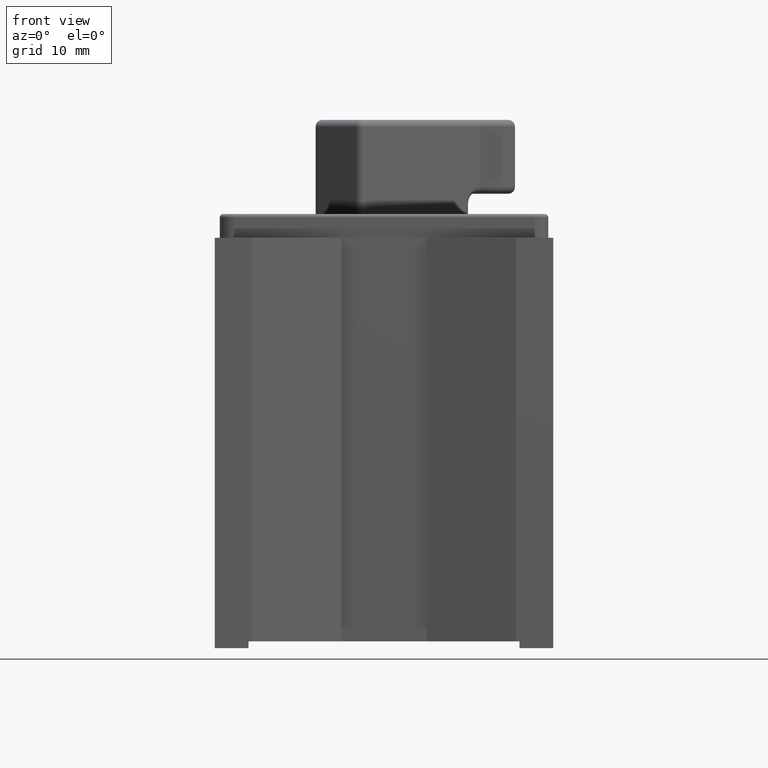
[diagram: clean part render]
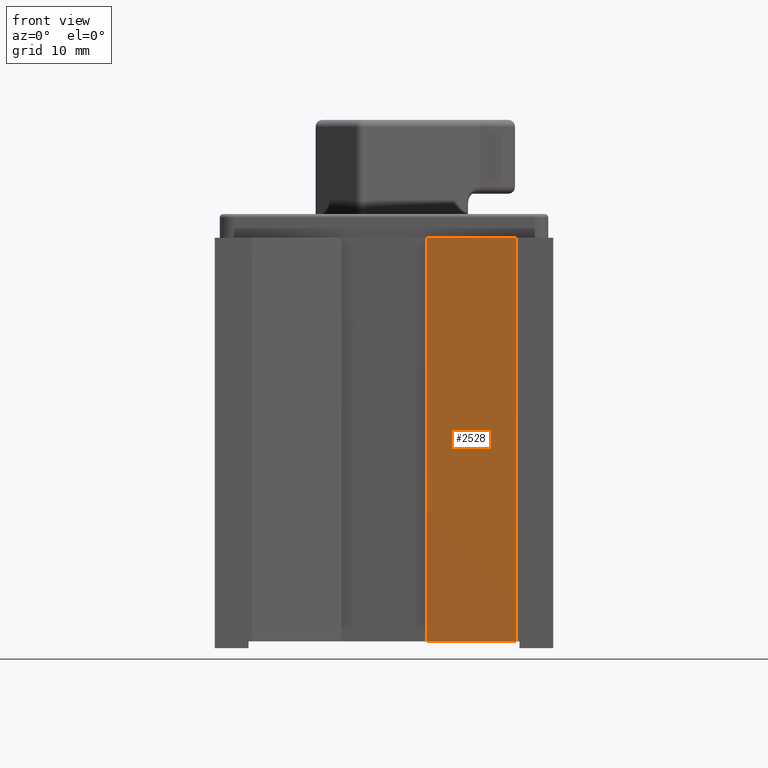
[diagram: same view with one face highlighted and labeled with its STEP entity id]
A machine part, front view. The second image highlights one B-rep face of the part: STEP entity #2528.
In plain terms, the highlighted planar face has unit normal (-0.29, -0.957, 0).
Its self-contained STEP definition (entity closure, byte-faithful):
#173 = CARTESIAN_POINT ( 'NONE',  ( 12.57474630655249800, -27.71065196765026400, 108.2999999999761900 ) ) ;
#211 = CARTESIAN_POINT ( 'NONE',  ( 12.57474630655249500, -27.71065196765026400, 48.69999999997617800 ) ) ;
#220 = VERTEX_POINT ( 'NONE', #211 ) ;
#313 = AXIS2_PLACEMENT_3D ( 'NONE', #3419, #5206, #1023 ) ;
#319 = DIRECTION ( 'NONE',  ( 0.0000000000000000000, 0.0000000000000000000, 1.000000000000000000 ) ) ;
#549 = EDGE_CURVE ( 'NONE', #2927, #1477, #4840, .T. ) ;
#653 = VECTOR ( 'NONE', #3394, 1000.000000000000000 ) ;
#731 = LINE ( 'NONE', #1017, #653 ) ;
#1017 = CARTESIAN_POINT ( 'NONE',  ( 12.57474630655249800, -27.71065196765026400, 47.69999999997618500 ) ) ;
#1023 = DIRECTION ( 'NONE',  ( 0.9570244044334739200, -0.2900073952828694500, 0.0000000000000000000 ) ) ;
#1056 = ORIENTED_EDGE ( 'NONE', *, *, #1303, .T. ) ;
#1303 = EDGE_CURVE ( 'NONE', #220, #1652, #731, .T. ) ;
#1477 = VERTEX_POINT ( 'NONE', #3335 ) ;
#1652 = VERTEX_POINT ( 'NONE', #173 ) ;
#1713 = EDGE_LOOP ( 'NONE', ( #4443, #1056, #4617, #4046 ) ) ;
#2391 = EDGE_CURVE ( 'NONE', #220, #2927, #4438, .T. ) ;
#2528 = ADVANCED_FACE ( 'NONE', ( #2605 ), #5746, .T. ) ;
#2605 = FACE_OUTER_BOUND ( 'NONE', #1713, .T. ) ;
#2927 = VERTEX_POINT ( 'NONE', #5971 ) ;
#3335 = CARTESIAN_POINT ( 'NONE',  ( -0.6252536934475581000, -23.71065196765026800, 108.2999999999761900 ) ) ;
#3394 = DIRECTION ( 'NONE',  ( 0.0000000000000000000, 0.0000000000000000000, 1.000000000000000000 ) ) ;
#3419 = CARTESIAN_POINT ( 'NONE',  ( -0.6252536934475581000, -23.71065196765026800, 47.69999999997618500 ) ) ;
#3459 = VECTOR ( 'NONE', #5712, 1000.000000000000200 ) ;
#3620 = CARTESIAN_POINT ( 'NONE',  ( -0.6252536934475581000, -23.71065196765026800, 47.69999999997618500 ) ) ;
#3766 = CARTESIAN_POINT ( 'NONE',  ( -0.6252536934475581000, -23.71065196765026800, 48.69999999997617800 ) ) ;
#3992 = EDGE_CURVE ( 'NONE', #1477, #1652, #5347, .T. ) ;
#4046 = ORIENTED_EDGE ( 'NONE', *, *, #549, .F. ) ;
#4048 = VECTOR ( 'NONE', #319, 1000.000000000000000 ) ;
#4438 = LINE ( 'NONE', #3766, #5064 ) ;
#4443 = ORIENTED_EDGE ( 'NONE', *, *, #2391, .F. ) ;
#4616 = DIRECTION ( 'NONE',  ( -0.9570244044334739200, 0.2900073952828694500, -0.0000000000000000000 ) ) ;
#4617 = ORIENTED_EDGE ( 'NONE', *, *, #3992, .F. ) ;
#4840 = LINE ( 'NONE', #3620, #4048 ) ;
#5064 = VECTOR ( 'NONE', #4616, 1000.000000000000100 ) ;
#5083 = CARTESIAN_POINT ( 'NONE',  ( -0.6252536934475581000, -23.71065196765026800, 108.2999999999761900 ) ) ;
#5206 = DIRECTION ( 'NONE',  ( -0.2900073952828695100, -0.9570244044334740300, 0.0000000000000000000 ) ) ;
#5347 = LINE ( 'NONE', #5083, #3459 ) ;
#5712 = DIRECTION ( 'NONE',  ( 0.9570244044334739200, -0.2900073952828694000, 0.0000000000000000000 ) ) ;
#5746 = PLANE ( 'NONE',  #313 ) ;
#5971 = CARTESIAN_POINT ( 'NONE',  ( -0.6252536934475581000, -23.71065196765026800, 48.69999999997617800 ) ) ;